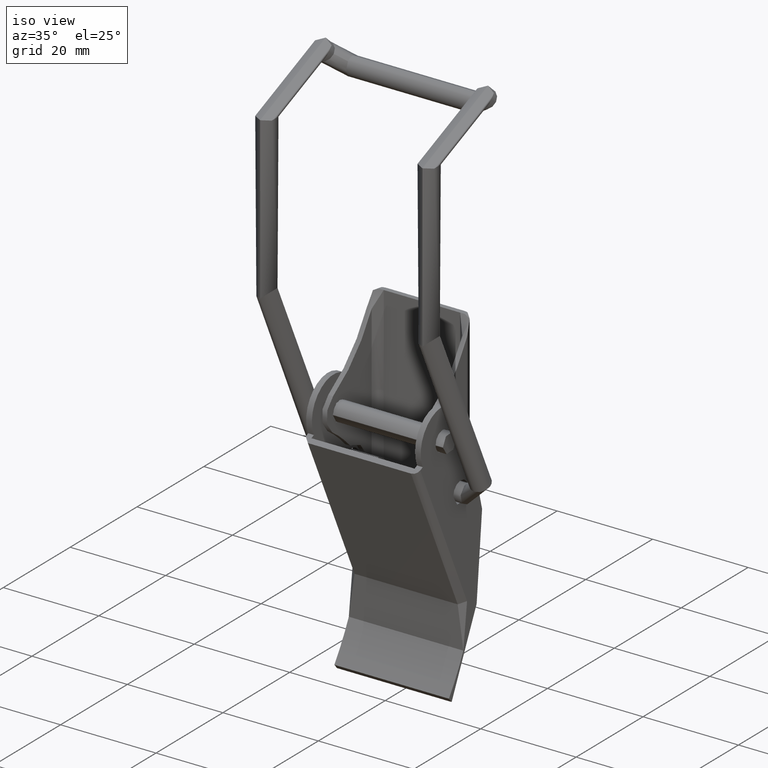
[diagram: clean part render]
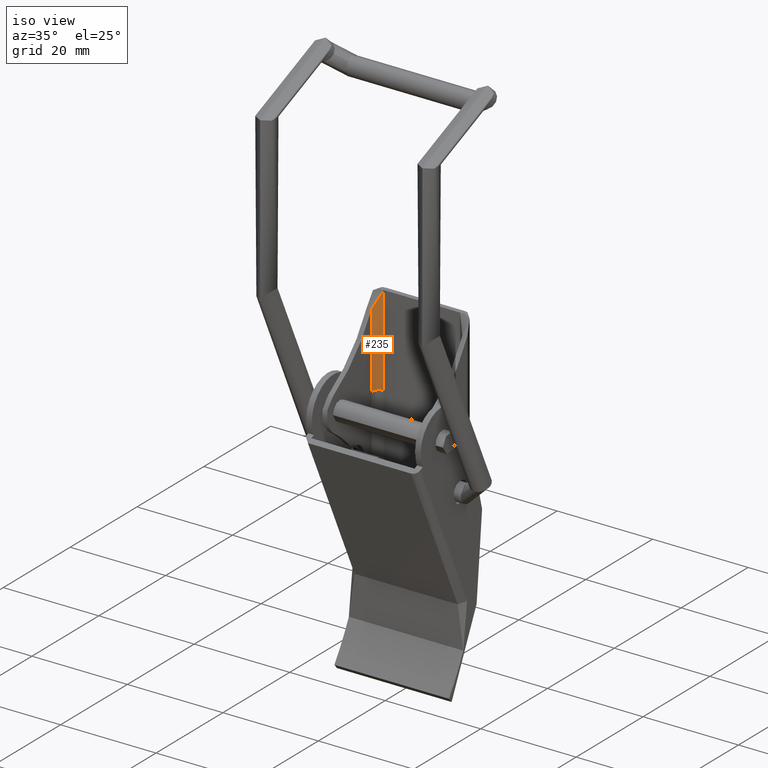
[diagram: same view with one face highlighted and labeled with its STEP entity id]
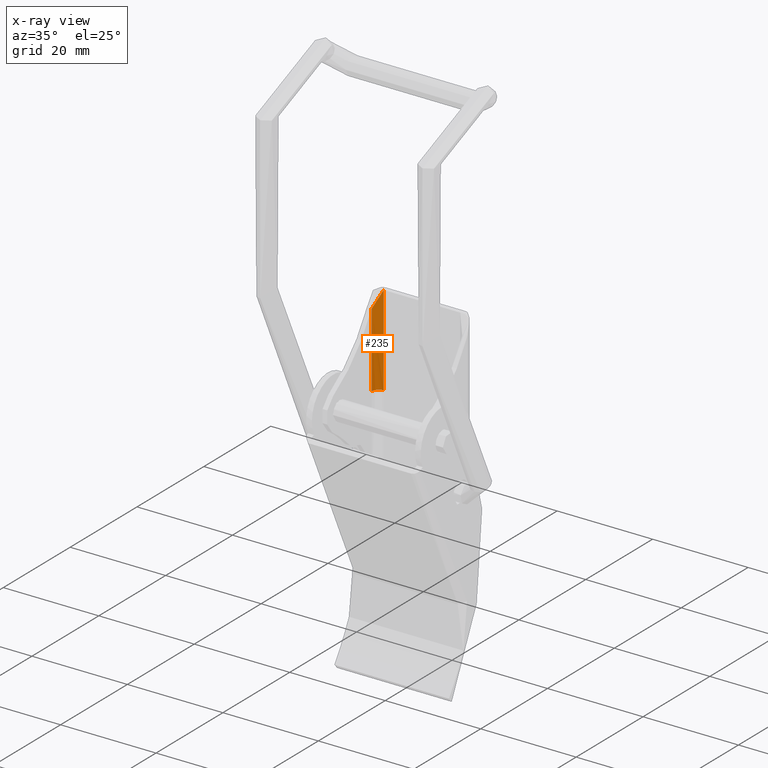
[diagram: x-ray of the same camera — body ghosted, the highlighted face saturated]
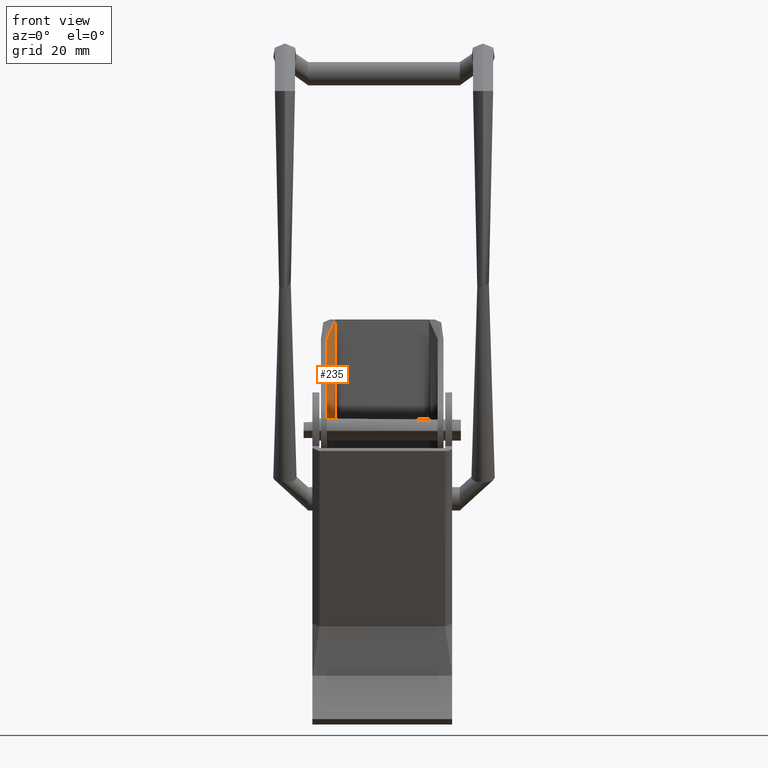
[diagram: same view with one face highlighted and labeled with its STEP entity id]
A machine part, iso view. The second image highlights one B-rep face of the part: STEP entity #235.
The next image is the same camera in x-ray: the body ghosted, the highlighted face saturated — about 0% of this face is hidden behind the body in this view.
A second angle (front view) of the same face is appended — the face is thin or edge-on in the first view.
In plain terms, the highlighted face is a freeform B-spline surface patch.
Its self-contained STEP definition (entity closure, byte-faithful):
#235=ADVANCED_FACE('',(#790),#789,.T.);
#789=( BOUNDED_SURFACE() B_SPLINE_SURFACE( 3,1,((#1673,#1674),(#1675,#1676),(#1677,#1678),(#1679,#1680),(#1681,#1682),(#1683,#1684),(#1685,#1686),(#1687,#1688),(#1689,#1690),(#1691,#1692),(#1693,#1694),(#1695,#1696),(#1697,#1698),(#1699,#1700),(#1701,#1702),(#1703,#1704),(#1705,#1706),(#1707,#1708)), .UNSPECIFIED.,.F.,.F.,.F.) B_SPLINE_SURFACE_WITH_KNOTS((4,1,1,1,1,1,1,1,1,1,1,1,1,1,1,4),(2,2),(0.00000000000E+00,1.73241907470E-02,3.77615431275E-02,6.84531946981E-02,1.12244079532E-01,1.46500136635E-01,2.23143636624E-01,2.88512602916E-01,3.49259213807E-01,4.51425341715E-01,5.52480434433E-01,6.55005277880E-01,7.35929098514E-01,8.19800575913E-01,9.07412243927E-01,1.00000000000E+00),(0.00000000000E+00,1.00000000000E+00), .UNSPECIFIED. ) GEOMETRIC_REPRESENTATION_ITEM() RATIONAL_B_SPLINE_SURFACE(((1.00000000000E+00,1.00000000000E+00),(1.00000000000E+00,1.00000000000E+00),(1.00000000000E+00,1.00000000000E+00),(1.00000000000E+00,1.00000000000E+00),(1.00000000000E+00,1.00000000000E+00),(1.00000000000E+00,1.00000000000E+00),(1.00000000000E+00,1.00000000000E+00),(1.00000000000E+00,1.00000000000E+00),(1.00000000000E+00,1.00000000000E+00),(1.00000000000E+00,1.00000000000E+00),(1.00000000000E+00,1.00000000000E+00),(1.00000000000E+00,1.00000000000E+00),(1.00000000000E+00,1.00000000000E+00),(1.00000000000E+00,1.00000000000E+00),(1.00000000000E+00,1.00000000000E+00),(1.00000000000E+00,1.00000000000E+00),(1.00000000000E+00,1.00000000000E+00),(1.00000000000E+00,1.00000000000E+00))) REPRESENTATION_ITEM('') SURFACE() );
#790=FACE_OUTER_BOUND('',#1709,.T.);
#1673=CARTESIAN_POINT('',(-2.01000000000E+05,2.50000000000E+00,-1.10000000000E+01));
#1674=CARTESIAN_POINT('',(0.00000000000E+00,2.50000000000E+00,-1.10000000000E+01));
#1675=CARTESIAN_POINT('',(-2.01000000000E+05,2.48639970373E+00,-1.09999999254E+01));
#1676=CARTESIAN_POINT('',(0.00000000000E+00,2.48639970373E+00,-1.09999999254E+01));
#1677=CARTESIAN_POINT('',(-2.01000000000E+05,2.45675408548E+00,-1.09995943543E+01));
#1678=CARTESIAN_POINT('',(0.00000000000E+00,2.45675408548E+00,-1.09995943543E+01));
#1679=CARTESIAN_POINT('',(-2.01000000000E+05,2.40305402913E+00,-1.09972856555E+01));
#1680=CARTESIAN_POINT('',(0.00000000000E+00,2.40305402913E+00,-1.09972856555E+01));
#1681=CARTESIAN_POINT('',(-2.01000000000E+05,2.32878619163E+00,-1.09909782255E+01));
#1682=CARTESIAN_POINT('',(0.00000000000E+00,2.32878619163E+00,-1.09909782255E+01));
#1683=CARTESIAN_POINT('',(-2.01000000000E+05,2.24411662380E+00,-1.09794100094E+01));
#1684=CARTESIAN_POINT('',(0.00000000000E+00,2.24411662380E+00,-1.09794100094E+01));
#1685=CARTESIAN_POINT('',(-2.01000000000E+05,2.12531215398E+00,-1.09540804496E+01));
#1686=CARTESIAN_POINT('',(0.00000000000E+00,2.12531215398E+00,-1.09540804496E+01));
#1687=CARTESIAN_POINT('',(-2.01000000000E+05,1.99184568172E+00,-1.09163242194E+01));
#1688=CARTESIAN_POINT('',(0.00000000000E+00,1.99184568172E+00,-1.09163242194E+01));
#1689=CARTESIAN_POINT('',(-2.01000000000E+05,1.84502172120E+00,-1.08537884735E+01));
#1690=CARTESIAN_POINT('',(0.00000000000E+00,1.84502172120E+00,-1.08537884735E+01));
#1691=CARTESIAN_POINT('',(-2.01000000000E+05,1.68870714095E+00,-1.07657438674E+01));
#1692=CARTESIAN_POINT('',(0.00000000000E+00,1.68870714095E+00,-1.07657438674E+01));
#1693=CARTESIAN_POINT('',(-2.01000000000E+05,1.51948167148E+00,-1.06446643944E+01));
#1694=CARTESIAN_POINT('',(0.00000000000E+00,1.51948167148E+00,-1.06446643944E+01));
#1695=CARTESIAN_POINT('',(-2.01000000000E+05,1.34962071938E+00,-1.04734821335E+01));
#1696=CARTESIAN_POINT('',(0.00000000000E+00,1.34962071938E+00,-1.04734821335E+01));
#1697=CARTESIAN_POINT('',(-2.01000000000E+05,1.21949112529E+00,-1.02907843383E+01));
#1698=CARTESIAN_POINT('',(0.00000000000E+00,1.21949112529E+00,-1.02907843383E+01));
#1699=CARTESIAN_POINT('',(-2.01000000000E+05,1.12216473417E+00,-1.01042946688E+01));
#1700=CARTESIAN_POINT('',(0.00000000000E+00,1.12216473417E+00,-1.01042946688E+01));
#1701=CARTESIAN_POINT('',(-2.01000000000E+05,1.05378791053E+00,-9.91765408460E+00));
#1702=CARTESIAN_POINT('',(0.00000000000E+00,1.05378791053E+00,-9.91765408460E+00));
#1703=CARTESIAN_POINT('',(-2.01000000000E+05,1.00990524959E+00,-9.71438681366E+00));
#1704=CARTESIAN_POINT('',(0.00000000000E+00,1.00990524959E+00,-9.71438681366E+00));
#1705=CARTESIAN_POINT('',(-2.01000000000E+05,9.99892833226E-01,-9.57268561998E+00));
#1706=CARTESIAN_POINT('',(0.00000000000E+00,9.99892833226E-01,-9.57268561998E+00));
#1707=CARTESIAN_POINT('',(-2.01000000000E+05,1.00000000000E+00,-9.50000000000E+00));
#1708=CARTESIAN_POINT('',(0.00000000000E+00,1.00000000000E+00,-9.50000000000E+00));
#1709=EDGE_LOOP('',(#2499,#2500,#2501,#2502,#2503,#2504,#2505,#2506));
#2499=ORIENTED_EDGE('',*,*,#2944,.T.);
#2500=ORIENTED_EDGE('',*,*,#2952,.T.);
#2501=ORIENTED_EDGE('',*,*,#2893,.F.);
#2502=ORIENTED_EDGE('',*,*,#2892,.F.);
#2503=ORIENTED_EDGE('',*,*,#2891,.F.);
#2504=ORIENTED_EDGE('',*,*,#2890,.F.);
#2505=ORIENTED_EDGE('',*,*,#2889,.F.);
#2506=ORIENTED_EDGE('',*,*,#2953,.F.);
#2889=EDGE_CURVE('',#3721,#3728,#3729,.T.);
#2890=EDGE_CURVE('',#3728,#3735,#3736,.T.);
#2891=EDGE_CURVE('',#3735,#3742,#3743,.T.);
#2892=EDGE_CURVE('',#3742,#3749,#3750,.T.);
#2893=EDGE_CURVE('',#3749,#3756,#3757,.T.);
#2944=EDGE_CURVE('',#3902,#4097,#4104,.T.);
#2952=EDGE_CURVE('',#4097,#3756,#4153,.T.);
#2953=EDGE_CURVE('',#3902,#3721,#4159,.T.);
#3721=VERTEX_POINT('',#5547);
#3728=VERTEX_POINT('',#5551);
#3729=(BOUNDED_CURVE() B_SPLINE_CURVE(3,(#5552,#5553,#5554,#5555),.UNSPECIFIED.,.F.,.F.) B_SPLINE_CURVE_WITH_KNOTS((4,4),(0.00000000000E+00,1.00000000000E+00),.UNSPECIFIED.) CURVE() GEOMETRIC_REPRESENTATION_ITEM() RATIONAL_B_SPLINE_CURVE((1.00000000000E+00,1.00000000000E+00,1.00000000000E+00,1.00000000000E+00)) REPRESENTATION_ITEM('') );
#3735=VERTEX_POINT('',#5556);
#3736=(BOUNDED_CURVE() B_SPLINE_CURVE(3,(#5557,#5558,#5559,#5560,#5561,#5562),.UNSPECIFIED.,.F.,.F.) B_SPLINE_CURVE_WITH_KNOTS((4,1,1,4),(1.47333967744E-01,2.23143636624E-01,2.88512602916E-01,3.49259213807E-01),.UNSPECIFIED.) CURVE() GEOMETRIC_REPRESENTATION_ITEM() RATIONAL_B_SPLINE_CURVE((1.00000000000E+00,1.00000000000E+00,1.00000000000E+00,1.00000000000E+00,1.00000000000E+00,1.00000000000E+00)) REPRESENTATION_ITEM('') );
#3742=VERTEX_POINT('',#5563);
#3743=(BOUNDED_CURVE() B_SPLINE_CURVE(3,(#5564,#5565,#5566,#5567),.UNSPECIFIED.,.F.,.F.) B_SPLINE_CURVE_WITH_KNOTS((4,4),(0.00000000000E+00,1.00000000000E+00),.UNSPECIFIED.) CURVE() GEOMETRIC_REPRESENTATION_ITEM() RATIONAL_B_SPLINE_CURVE((1.00000000000E+00,1.00000000000E+00,1.00000000000E+00,1.00000000000E+00)) REPRESENTATION_ITEM('') );
#3749=VERTEX_POINT('',#5568);
#3750=(BOUNDED_CURVE() B_SPLINE_CURVE(3,(#5569,#5570,#5571,#5572),.UNSPECIFIED.,.F.,.F.) B_SPLINE_CURVE_WITH_KNOTS((4,4),(4.01764272691E-01,6.56224005225E-01),.UNSPECIFIED.) CURVE() GEOMETRIC_REPRESENTATION_ITEM() RATIONAL_B_SPLINE_CURVE((1.00000000000E+00,1.00000000000E+00,1.00000000000E+00,1.00000000000E+00)) REPRESENTATION_ITEM('') );
#3756=VERTEX_POINT('',#5573);
#3757=(BOUNDED_CURVE() B_SPLINE_CURVE(3,(#5574,#5575,#5576,#5577,#5578,#5579,#5580),.UNSPECIFIED.,.F.,.F.) B_SPLINE_CURVE_WITH_KNOTS((4,1,1,1,4),(6.56224005225E-01,7.35929098514E-01,8.19800575913E-01,9.07412243927E-01,1.00000000000E+00),.UNSPECIFIED.) CURVE() GEOMETRIC_REPRESENTATION_ITEM() RATIONAL_B_SPLINE_CURVE((1.00000000000E+00,1.00000000000E+00,1.00000000000E+00,1.00000000000E+00,1.00000000000E+00,1.00000000000E+00,1.00000000000E+00)) REPRESENTATION_ITEM('') );
#3902=VERTEX_POINT('',#5709);
#4097=VERTEX_POINT('',#5861);
#4104=(BOUNDED_CURVE() B_SPLINE_CURVE(3,(#5866,#5867,#5868,#5869,#5870,#5871,#5872,#5873,#5874,#5875,#5876,#5877,#5878,#5879),.UNSPECIFIED.,.F.,.F.) B_SPLINE_CURVE_WITH_KNOTS((4,2,2,2,2,2,4),(1.03894441282E-15,2.69267913116E-04,5.38535826232E-04,1.07707165246E-03,2.15414330492E-03,3.23121495738E-03,4.30828660985E-03),.UNSPECIFIED.) CURVE() GEOMETRIC_REPRESENTATION_ITEM() RATIONAL_B_SPLINE_CURVE((1.00000000000E+00,1.00000000000E+00,1.00000000000E+00,1.00000000000E+00,1.00000000000E+00,1.00000000000E+00,1.00000000000E+00,1.00000000000E+00,1.00000000000E+00,1.00000000000E+00,1.00000000000E+00,1.00000000000E+00,1.00000000000E+00,1.00000000000E+00)) REPRESENTATION_ITEM('') );
#4153=LINE('',#5925,#5926);
#4159=LINE('',#5928,#5929);
#5547=CARTESIAN_POINT('',(0.00000000000E+00,2.50000000000E+00,-1.10000000000E+01));
#5551=CARTESIAN_POINT('',(0.00000000000E+00,2.15606838607E+00,-1.09600377073E+01));
#5552=CARTESIAN_POINT('',(0.00000000000E+00,2.50000000000E+00,-1.10000000000E+01));
#5553=CARTESIAN_POINT('',(0.00000000000E+00,2.38432704169E+00,-1.10000000000E+01));
#5554=CARTESIAN_POINT('',(0.00000000000E+00,2.26865959172E+00,-1.09865604087E+01));
#5555=CARTESIAN_POINT('',(0.00000000000E+00,2.15606831435E+00,-1.09600380117E+01));
#5556=CARTESIAN_POINT('',(0.00000000000E+00,1.71805787509E+00,-1.07800650426E+01));
#5557=CARTESIAN_POINT('',(0.00000000000E+00,2.15606838607E+00,-1.09600377073E+01));
#5558=CARTESIAN_POINT('',(0.00000000000E+00,2.09811170164E+00,-1.09463852270E+01));
#5559=CARTESIAN_POINT('',(0.00000000000E+00,1.99124187947E+00,-1.09160670459E+01));
#5560=CARTESIAN_POINT('',(0.00000000000E+00,1.84502172120E+00,-1.08537884735E+01));
#5561=CARTESIAN_POINT('',(0.00000000000E+00,1.75866480748E+00,-1.08051477105E+01));
#5562=CARTESIAN_POINT('',(0.00000000000E+00,1.71805787509E+00,-1.07800650426E+01));
#5563=CARTESIAN_POINT('',(0.00000000000E+00,1.61519759661E+00,-1.07112492340E+01));
#5564=CARTESIAN_POINT('',(0.00000000000E+00,1.71805787509E+00,-1.07800650426E+01));
#5565=CARTESIAN_POINT('',(0.00000000000E+00,1.68284403689E+00,-1.07585542736E+01));
#5566=CARTESIAN_POINT('',(0.00000000000E+00,1.64851835230E+00,-1.07355896290E+01));
#5567=CARTESIAN_POINT('',(0.00000000000E+00,1.61519759661E+00,-1.07112492340E+01));
#5568=CARTESIAN_POINT('',(0.00000000000E+00,1.21347813834E+00,-1.02712724290E+01));
#5569=CARTESIAN_POINT('',(0.00000000000E+00,1.61519759661E+00,-1.07112492340E+01));
#5570=CARTESIAN_POINT('',(0.00000000000E+00,1.45276861293E+00,-1.05944051245E+01));
#5571=CARTESIAN_POINT('',(0.00000000000E+00,1.31601624969E+00,-1.04428728716E+01));
#5572=CARTESIAN_POINT('',(0.00000000000E+00,1.21347813834E+00,-1.02712724290E+01));
#5573=CARTESIAN_POINT('',(0.00000000000E+00,1.00000000000E+00,-9.50000000000E+00));
#5574=CARTESIAN_POINT('',(0.00000000000E+00,1.21347813834E+00,-1.02712724290E+01));
#5575=CARTESIAN_POINT('',(0.00000000000E+00,1.18127710552E+00,-1.02175594592E+01));
#5576=CARTESIAN_POINT('',(0.00000000000E+00,1.12183458202E+00,-1.01033934893E+01));
#5577=CARTESIAN_POINT('',(0.00000000000E+00,1.05378791053E+00,-9.91765408460E+00));
#5578=CARTESIAN_POINT('',(0.00000000000E+00,1.00990524959E+00,-9.71438681366E+00));
#5579=CARTESIAN_POINT('',(0.00000000000E+00,9.99892833226E-01,-9.57268561998E+00));
#5580=CARTESIAN_POINT('',(0.00000000000E+00,1.00000000000E+00,-9.50000000000E+00));
#5709=CARTESIAN_POINT('',(-1.90000000000E+01,2.50000000000E+00,-1.10000000000E+01));
#5861=CARTESIAN_POINT('',(-1.55907781039E+01,1.00000000000E+00,-9.50000000000E+00));
#5866=CARTESIAN_POINT('',(-1.90000000000E+01,2.50000000000E+00,-1.10000000000E+01));
#5867=CARTESIAN_POINT('',(-1.89999986398E+01,2.40875679100E+00,-1.09999994998E+01));
#5868=CARTESIAN_POINT('',(-1.89771820488E+01,2.31969239378E+00,-1.09916282522E+01));
#5869=CARTESIAN_POINT('',(-1.89008235233E+01,2.15992451689E+00,-1.09633614405E+01));
#5870=CARTESIAN_POINT('',(-1.88489999423E+01,2.08723791445E+00,-1.09440789055E+01));
#5871=CARTESIAN_POINT('',(-1.86783962869E+01,1.89068711523E+00,-1.08799083017E+01));
#5872=CARTESIAN_POINT('',(-1.85368891060E+01,1.79001224833E+00,-1.08257768059E+01));
#5873=CARTESIAN_POINT('',(-1.81069144576E+01,1.52360097049E+00,-1.06570230855E+01));
#5874=CARTESIAN_POINT('',(-1.77984424353E+01,1.39637413433E+00,-1.05306840441E+01));
#5875=CARTESIAN_POINT('',(-1.71707824972E+01,1.19629794657E+00,-1.02602931987E+01));
#5876=CARTESIAN_POINT('',(-1.68556261831E+01,1.12386104940E+00,-1.01181635914E+01));
#5877=CARTESIAN_POINT('',(-1.62242067270E+01,1.02531265971E+00,-9.81988648769E+00));
#5878=CARTESIAN_POINT('',(-1.59078628035E+01,9.99758622504E-01,-9.66371373616E+00));
#5879=CARTESIAN_POINT('',(-1.55907781039E+01,1.00000000000E+00,-9.50000000000E+00));
#5925=CARTESIAN_POINT('',(-1.55907781039E+01,1.00000000000E+00,-9.50000000000E+00));
#5926=VECTOR('',#5927,1.55907781039E+01);
#5927=DIRECTION('',(1.00000000000E+00,0.00000000000E+00,0.00000000000E+00));
#5928=CARTESIAN_POINT('',(-1.90000000000E+01,2.50000000000E+00,-1.10000000000E+01));
#5929=VECTOR('',#5930,1.90000000000E+01);
#5930=DIRECTION('',(1.00000000000E+00,0.00000000000E+00,0.00000000000E+00));